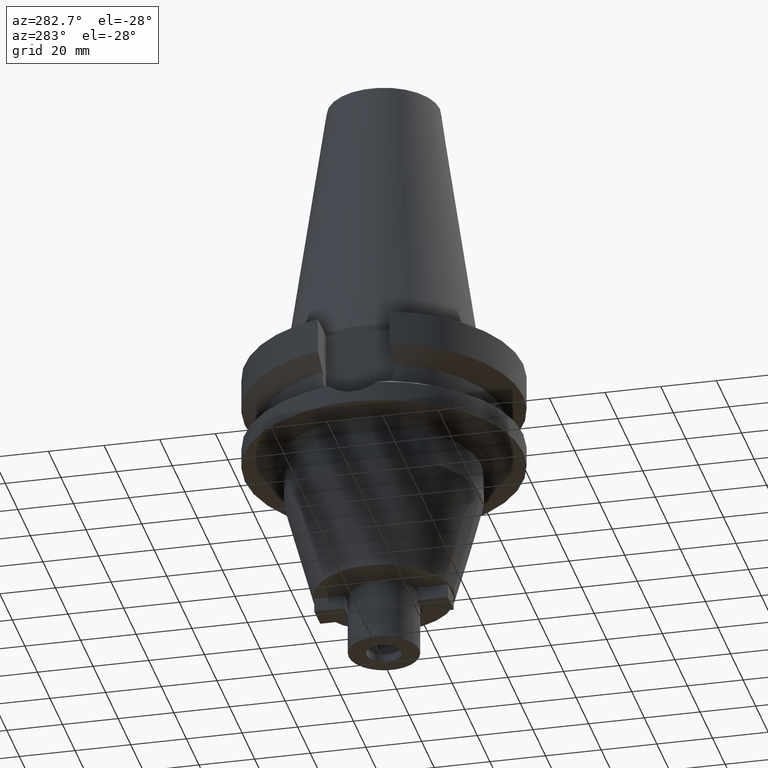
[diagram: clean part render]
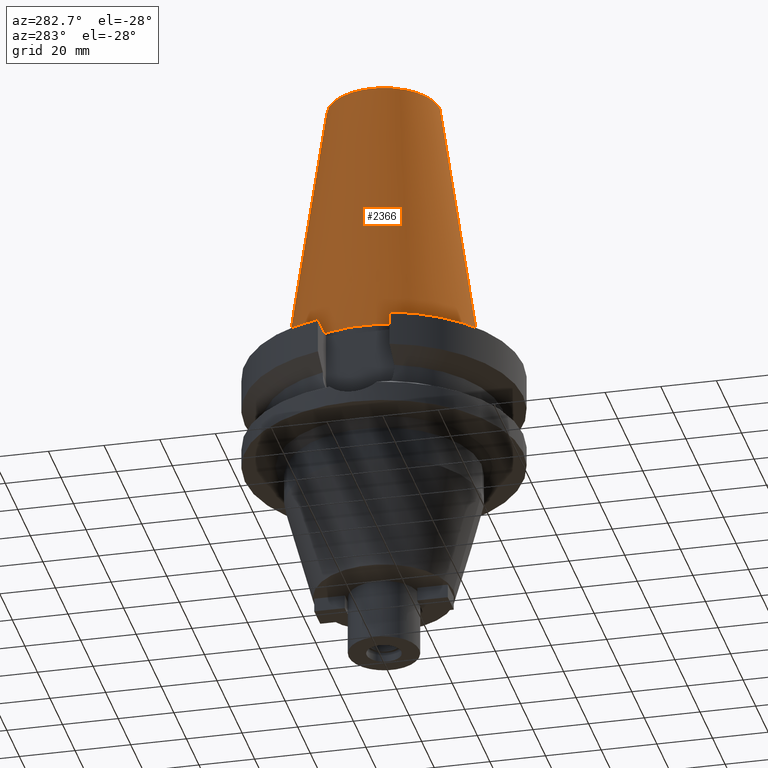
[diagram: same view with one face highlighted and labeled with its STEP entity id]
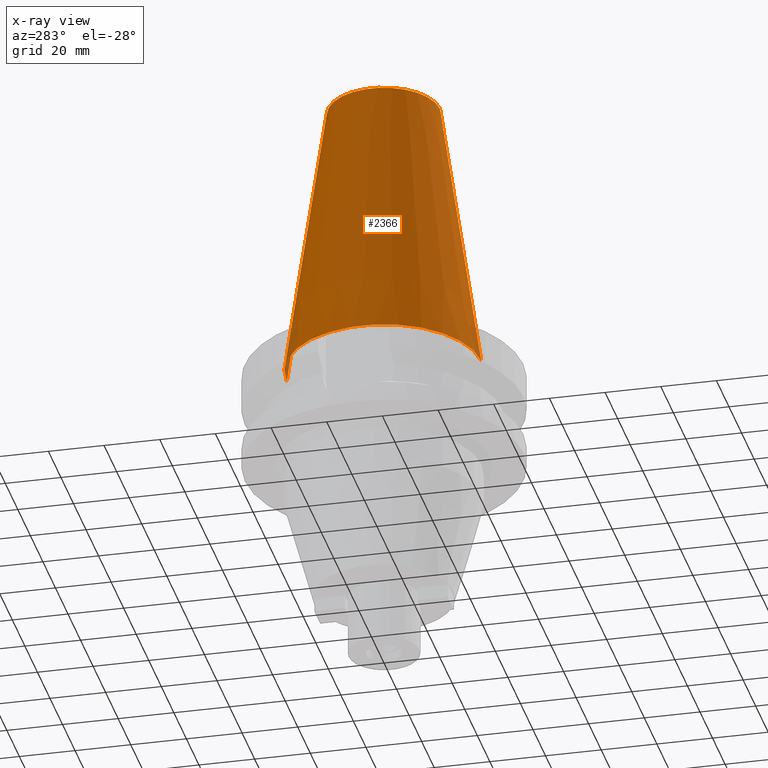
[diagram: x-ray of the same camera — body ghosted, the highlighted face saturated]
A machine part, auxiliary view. The second image highlights one B-rep face of the part: STEP entity #2366.
The next image is the same camera in x-ray: the body ghosted, the highlighted face saturated — about 1% of this face is hidden behind the body in this view.
In plain terms, the highlighted conical surface has half-angle 8.297 deg.
Its self-contained STEP definition (entity closure, byte-faithful):
#1082=DIRECTION('',(0.E0,-1.443043893539E-1,-9.895333461856E-1));
#1083=VECTOR('',#1082,1.028767755957E2);
#1084=CARTESIAN_POINT('',(0.E0,-2.007942971896E1,1.018E2));
#1085=LINE('',#1084,#1083);
#1089=CARTESIAN_POINT('',(0.E0,0.E0,-5.115907697473E-13));
#1090=DIRECTION('',(0.E0,0.E0,-1.E0));
#1091=DIRECTION('',(0.E0,-1.E0,0.E0));
#1092=AXIS2_PLACEMENT_3D('',#1089,#1090,#1091);
#1097=DIRECTION('',(0.E0,1.443043893539E-1,-9.895333461856E-1));
#1098=VECTOR('',#1097,1.028767755957E2);
#1099=CARTESIAN_POINT('',(0.E0,2.007942971896E1,1.018E2));
#1100=LINE('',#1099,#1098);
#1112=CARTESIAN_POINT('',(0.E0,0.E0,1.018E2));
#1113=DIRECTION('',(0.E0,0.E0,-1.E0));
#1114=DIRECTION('',(0.E0,-1.E0,0.E0));
#1115=AXIS2_PLACEMENT_3D('',#1112,#1113,#1114);
#1457=CARTESIAN_POINT('',(0.E0,3.4925E1,-5.044853423897E-13));
#1458=VERTEX_POINT('',#1457);
#1459=CARTESIAN_POINT('',(0.E0,-3.4925E1,-5.044853423897E-13));
#1460=VERTEX_POINT('',#1459);
#1461=CARTESIAN_POINT('',(0.E0,2.007942971896E1,1.018E2));
#1462=VERTEX_POINT('',#1461);
#1463=CARTESIAN_POINT('',(0.E0,-2.007942971896E1,1.018E2));
#1464=VERTEX_POINT('',#1463);
#2352=CARTESIAN_POINT('',(0.E0,0.E0,5.09E1));
#2353=DIRECTION('',(0.E0,0.E0,-1.E0));
#2354=DIRECTION('',(0.E0,-1.E0,0.E0));
#2355=AXIS2_PLACEMENT_3D('',#2352,#2353,#2354);
#2356=CONICAL_SURFACE('',#2355,2.750221485948E1,8.297E0);
#2358=ORIENTED_EDGE('',*,*,#2357,.F.);
#2360=ORIENTED_EDGE('',*,*,#2359,.F.);
#2362=ORIENTED_EDGE('',*,*,#2361,.T.);
#2363=ORIENTED_EDGE('',*,*,#2345,.T.);
#2364=EDGE_LOOP('',(#2358,#2360,#2362,#2363));
#2365=FACE_OUTER_BOUND('',#2364,.F.);
#1093=CIRCLE('',#1092,3.4925E1);
#1116=CIRCLE('',#1115,2.007942971896E1);
#2345=EDGE_CURVE('',#1460,#1458,#1093,.T.);
#2357=EDGE_CURVE('',#1462,#1458,#1100,.T.);
#2359=EDGE_CURVE('',#1464,#1462,#1116,.T.);
#2361=EDGE_CURVE('',#1464,#1460,#1085,.T.);
#2366=ADVANCED_FACE('',(#2365),#2356,.T.);